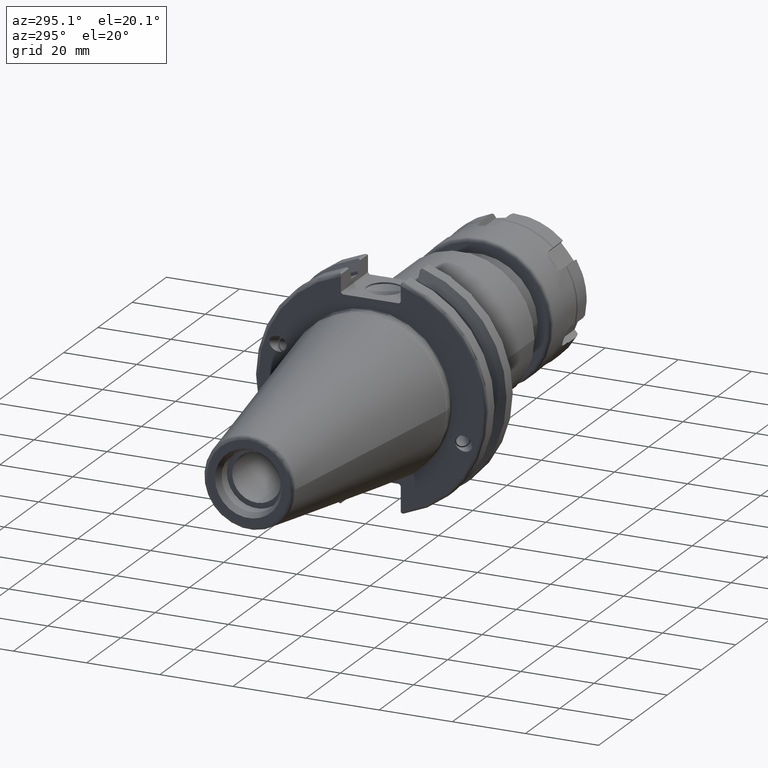
[diagram: clean part render]
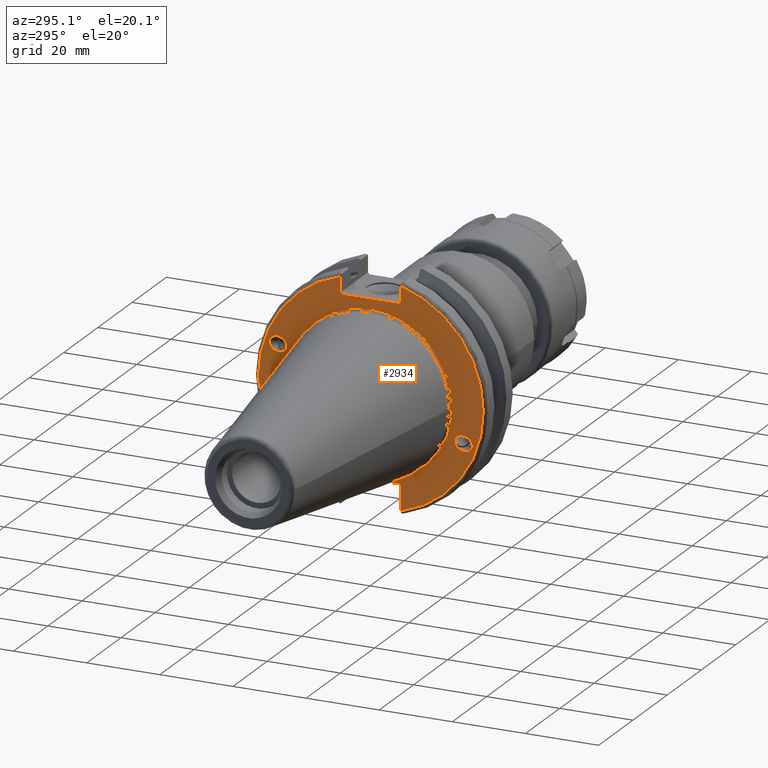
[diagram: same view with one face highlighted and labeled with its STEP entity id]
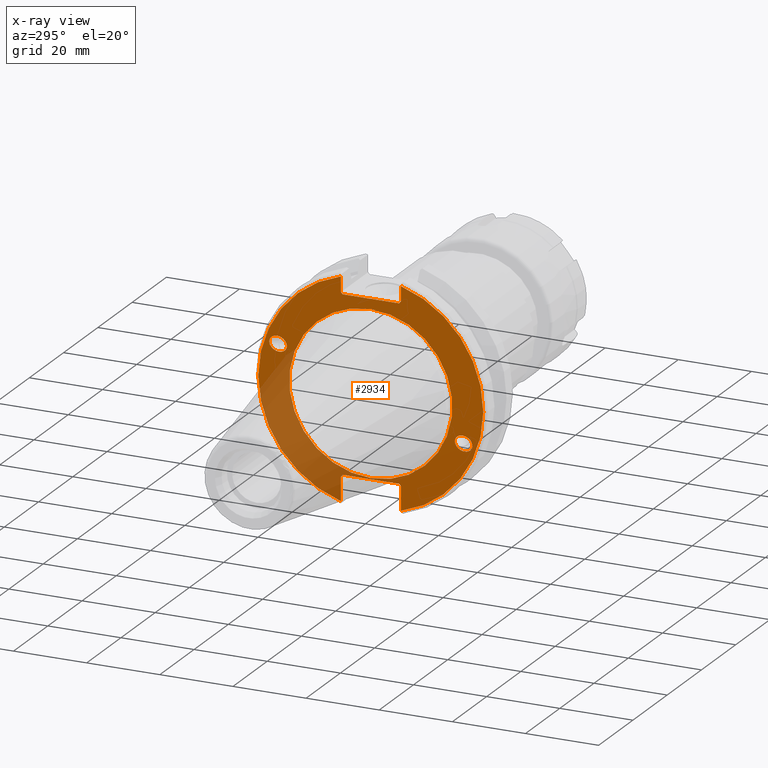
[diagram: x-ray of the same camera — body ghosted, the highlighted face saturated]
A machine part, auxiliary view. The second image highlights one B-rep face of the part: STEP entity #2934.
The next image is the same camera in x-ray: the body ghosted, the highlighted face saturated — about 27% of this face is hidden behind the body in this view.
In plain terms, the highlighted planar face has unit normal (-1, 0, 0).
Its self-contained STEP definition (entity closure, byte-faithful):
#290=ELLIPSE('',#3201,2.44154917752292,2.00000000000001);
#299=ELLIPSE('',#3244,2.44154917752292,2.00000000000001);
#322=PLANE('',#3250);
#378=FACE_BOUND('',#687,.T.);
#379=FACE_BOUND('',#688,.T.);
#380=FACE_BOUND('',#689,.T.);
#523=FACE_OUTER_BOUND('',#686,.T.);
#686=EDGE_LOOP('',(#2218,#2219,#2220,#2221,#2222,#2223,#2224,#2225,#2226,
#2227,#2228,#2229));
#687=EDGE_LOOP('',(#2230));
#688=EDGE_LOOP('',(#2231));
#689=EDGE_LOOP('',(#2232));
#851=LINE('',#4825,#1041);
#852=LINE('',#4827,#1042);
#853=LINE('',#4829,#1043);
#854=LINE('',#4831,#1044);
#855=LINE('',#4833,#1045);
#856=LINE('',#4837,#1046);
#857=LINE('',#4839,#1047);
#858=LINE('',#4841,#1048);
#859=LINE('',#4843,#1049);
#860=LINE('',#4844,#1050);
#1041=VECTOR('',#3737,10.);
#1042=VECTOR('',#3738,10.);
#1043=VECTOR('',#3739,10.);
#1044=VECTOR('',#3740,10.);
#1045=VECTOR('',#3741,10.);
#1046=VECTOR('',#3744,10.);
#1047=VECTOR('',#3745,10.);
#1048=VECTOR('',#3746,10.);
#1049=VECTOR('',#3747,10.);
#1050=VECTOR('',#3748,10.);
#1231=CIRCLE('',#3248,22.3);
#1233=CIRCLE('',#3251,30.75);
#1234=CIRCLE('',#3252,30.75);
#1365=VERTEX_POINT('',#4626);
#1405=VERTEX_POINT('',#4809);
#1408=VERTEX_POINT('',#4816);
#1409=VERTEX_POINT('',#4821);
#1410=VERTEX_POINT('',#4822);
#1411=VERTEX_POINT('',#4824);
#1412=VERTEX_POINT('',#4826);
#1413=VERTEX_POINT('',#4828);
#1414=VERTEX_POINT('',#4830);
#1415=VERTEX_POINT('',#4832);
#1416=VERTEX_POINT('',#4834);
#1417=VERTEX_POINT('',#4836);
#1418=VERTEX_POINT('',#4838);
#1419=VERTEX_POINT('',#4840);
#1420=VERTEX_POINT('',#4842);
#1657=EDGE_CURVE('',#1365,#1365,#290,.T.);
#1713=EDGE_CURVE('',#1405,#1405,#299,.T.);
#1716=EDGE_CURVE('',#1408,#1408,#1231,.T.);
#1718=EDGE_CURVE('',#1409,#1410,#1233,.T.);
#1719=EDGE_CURVE('',#1409,#1411,#851,.T.);
#1720=EDGE_CURVE('',#1412,#1411,#852,.T.);
#1721=EDGE_CURVE('',#1412,#1413,#853,.T.);
#1722=EDGE_CURVE('',#1414,#1413,#854,.T.);
#1723=EDGE_CURVE('',#1414,#1415,#855,.T.);
#1724=EDGE_CURVE('',#1416,#1415,#1234,.T.);
#1725=EDGE_CURVE('',#1416,#1417,#856,.T.);
#1726=EDGE_CURVE('',#1418,#1417,#857,.T.);
#1727=EDGE_CURVE('',#1418,#1419,#858,.T.);
#1728=EDGE_CURVE('',#1420,#1419,#859,.T.);
#1729=EDGE_CURVE('',#1420,#1410,#860,.T.);
#2218=ORIENTED_EDGE('',*,*,#1718,.F.);
#2219=ORIENTED_EDGE('',*,*,#1719,.T.);
#2220=ORIENTED_EDGE('',*,*,#1720,.F.);
#2221=ORIENTED_EDGE('',*,*,#1721,.T.);
#2222=ORIENTED_EDGE('',*,*,#1722,.F.);
#2223=ORIENTED_EDGE('',*,*,#1723,.T.);
#2224=ORIENTED_EDGE('',*,*,#1724,.F.);
#2225=ORIENTED_EDGE('',*,*,#1725,.T.);
#2226=ORIENTED_EDGE('',*,*,#1726,.F.);
#2227=ORIENTED_EDGE('',*,*,#1727,.T.);
#2228=ORIENTED_EDGE('',*,*,#1728,.F.);
#2229=ORIENTED_EDGE('',*,*,#1729,.T.);
#2230=ORIENTED_EDGE('',*,*,#1657,.T.);
#2231=ORIENTED_EDGE('',*,*,#1713,.T.);
#2232=ORIENTED_EDGE('',*,*,#1716,.F.);
#2934=ADVANCED_FACE('',(#523,#378,#379,#380),#322,.T.);
#3201=AXIS2_PLACEMENT_3D('',#4628,#3618,#3619);
#3244=AXIS2_PLACEMENT_3D('',#4811,#3721,#3722);
#3248=AXIS2_PLACEMENT_3D('',#4818,#3729,#3730);
#3250=AXIS2_PLACEMENT_3D('',#4820,#3733,#3734);
#3251=AXIS2_PLACEMENT_3D('',#4823,#3735,#3736);
#3252=AXIS2_PLACEMENT_3D('',#4835,#3742,#3743);
#3618=DIRECTION('center_axis',(1.,0.,0.));
#3619=DIRECTION('ref_axis',(5.68400912649E-17,-0.939692620785909,-0.342020143325667));
#3721=DIRECTION('center_axis',(1.,0.,0.));
#3722=DIRECTION('ref_axis',(5.68400912649E-17,0.939692620785909,0.342020143325667));
#3729=DIRECTION('center_axis',(-1.,0.,0.));
#3730=DIRECTION('ref_axis',(0.,-1.,1.83697019872103E-16));
#3733=DIRECTION('center_axis',(-1.,0.,0.));
#3734=DIRECTION('ref_axis',(0.,0.,1.));
#3735=DIRECTION('center_axis',(1.,0.,0.));
#3736=DIRECTION('ref_axis',(0.,-1.,1.60812264967664E-16));
#3737=DIRECTION('',(0.,0.,-1.));
#3738=DIRECTION('',(0.,-0.70710678118655,0.707106781186545));
#3739=DIRECTION('',(0.,1.,0.));
#3740=DIRECTION('',(0.,-0.707106781186549,-0.707106781186546));
#3741=DIRECTION('',(0.,0.,1.));
#3742=DIRECTION('center_axis',(1.,0.,0.));
#3743=DIRECTION('ref_axis',(0.,1.,1.60812264967664E-16));
#3744=DIRECTION('',(0.,0.,1.));
#3745=DIRECTION('',(0.,0.707106781186549,-0.707106781186546));
#3746=DIRECTION('',(0.,-1.,0.));
#3747=DIRECTION('',(0.,0.707106781186549,0.707106781186546));
#3748=DIRECTION('',(0.,0.,-1.));
#4626=CARTESIAN_POINT('',(3.175,-23.0773950158153,-8.39948487016));
#4628=CARTESIAN_POINT('Origin',(3.175,-25.3717007612195,-9.23454386979305));
#4809=CARTESIAN_POINT('',(3.175,23.0773950158153,8.39948487016));
#4811=CARTESIAN_POINT('Origin',(3.175,25.3717007612195,9.23454386979306));
#4816=CARTESIAN_POINT('',(3.175,-2.7309623620986E-15,22.3));
#4818=CARTESIAN_POINT('Origin',(3.175,0.,0.));
#4820=CARTESIAN_POINT('Origin',(3.175,31.75,0.));
#4821=CARTESIAN_POINT('',(3.175,-8.18999999999999,29.6392712461019));
#4822=CARTESIAN_POINT('',(3.175,-8.19,-29.6392712461019));
#4823=CARTESIAN_POINT('Origin',(3.175,0.,0.));
#4824=CARTESIAN_POINT('',(3.175,-8.18999999999999,25.5));
#4825=CARTESIAN_POINT('',(3.175,-8.18999999999999,12.5));
#4826=CARTESIAN_POINT('',(3.175,-7.68999999999999,25.));
#4827=CARTESIAN_POINT('',(3.175,8.29500000000007,9.01500000000004));
#4828=CARTESIAN_POINT('',(3.175,7.69,25.));
#4829=CARTESIAN_POINT('',(3.175,15.875,25.));
#4830=CARTESIAN_POINT('',(3.175,8.19,25.5));
#4831=CARTESIAN_POINT('',(3.175,7.58000000000002,24.89));
#4832=CARTESIAN_POINT('',(3.175,8.19,29.6392712461019));
#4833=CARTESIAN_POINT('',(3.175,8.19,12.5));
#4834=CARTESIAN_POINT('',(3.175,8.18999999999999,-29.6392712461019));
#4835=CARTESIAN_POINT('Origin',(3.175,0.,0.));
#4836=CARTESIAN_POINT('',(3.175,8.18999999999999,-23.1));
#4837=CARTESIAN_POINT('',(3.175,8.18999999999999,-11.3));
#4838=CARTESIAN_POINT('',(3.175,7.69,-22.6));
#4839=CARTESIAN_POINT('',(3.175,8.18000000000002,-23.09));
#4840=CARTESIAN_POINT('',(3.175,-7.69,-22.6));
#4841=CARTESIAN_POINT('',(3.175,15.875,-22.6));
#4842=CARTESIAN_POINT('',(3.175,-8.19,-23.1));
#4843=CARTESIAN_POINT('',(3.175,7.69500000000004,-7.21500000000002));
#4844=CARTESIAN_POINT('',(3.175,-8.19,-11.3));